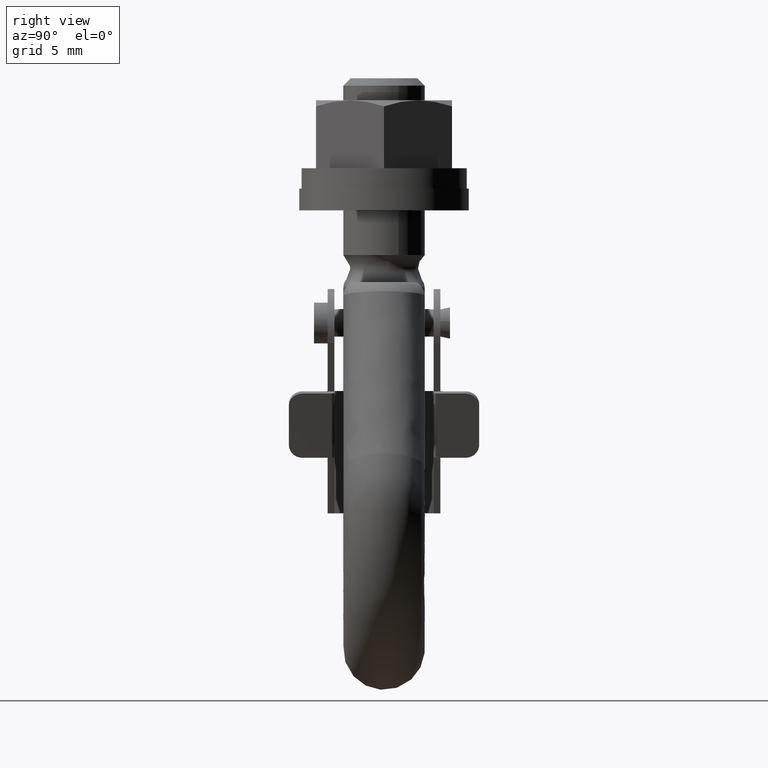
[diagram: clean part render]
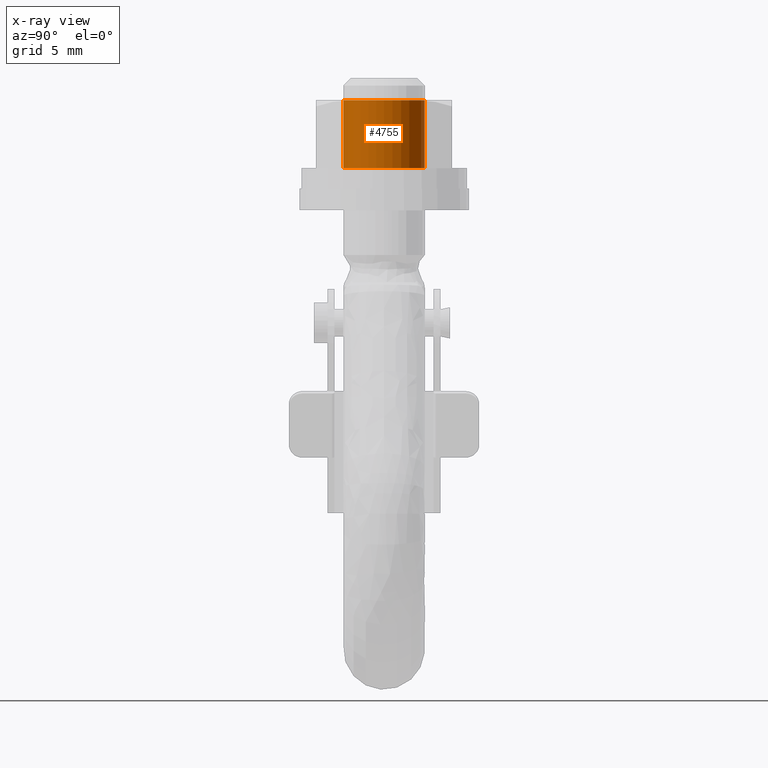
[diagram: x-ray — body ghosted, one internal face saturated and labeled with its STEP entity id]
A machine part, right view, then the same camera in x-ray: the body is ghosted and one INTERNAL B-rep face — a face not visible from any outside direction — is saturated and labeled: STEP entity #4755.
In plain terms, the highlighted face is a freeform B-spline surface patch.
Its self-contained STEP definition (entity closure, byte-faithful):
#4653=CARTESIAN_POINT('',(-0.354102703970275,-2.979028579091000,25.257636969437449));
#4654=CARTESIAN_POINT('',(-0.268844185913933,-2.989162846345817,25.257636969437449));
#4655=CARTESIAN_POINT('',(-0.183145618604571,-2.994404395265600,25.257636969437449));
#4656=CARTESIAN_POINT('',(2.811258776661029,-3.177550013870171,25.257636969437449));
#4657=CARTESIAN_POINT('',(2.994404395265600,-0.183145618604571,25.257636969437449));
#4658=CARTESIAN_POINT('',(3.177550013870171,2.811258776661029,25.257636969437449));
#4659=CARTESIAN_POINT('',(0.183145618604571,2.994404395265600,25.257636969437449));
#4660=CARTESIAN_POINT('',(-0.354102703970275,-2.979028579091000,30.510761969437457));
#4661=CARTESIAN_POINT('',(-0.268844185913933,-2.989162846345817,30.510761969437457));
#4662=CARTESIAN_POINT('',(-0.183145618604571,-2.994404395265600,30.510761969437450));
#4663=CARTESIAN_POINT('',(2.811258776661029,-3.177550013870171,30.510761969437457));
#4664=CARTESIAN_POINT('',(2.994404395265600,-0.183145618604571,30.510761969437450));
#4665=CARTESIAN_POINT('',(3.177550013870171,2.811258776661029,30.510761969437457));
#4666=CARTESIAN_POINT('',(0.183145618604571,2.994404395265600,30.510761969437450));
#4674=(BOUNDED_SURFACE()B_SPLINE_SURFACE(2,1,((#4653,#4660),(#4654,#4661),(#4655,#4662),(#4656,#4663),(#4657,#4664),(#4658,#4665),(#4659,#4666)),.UNSPECIFIED.,.F.,.F.,.U.)B_SPLINE_SURFACE_WITH_KNOTS((3,2,2,3),(2,2),(0.0,0.198822509939086,5.169385258416225,10.139948006893370),(0.0,5.253125000000011),.UNSPECIFIED.)GEOMETRIC_REPRESENTATION_ITEM()RATIONAL_B_SPLINE_SURFACE(((0.977505800795127,0.977505800795127),(0.988284271247462,0.988284271247462),(1.0,1.0),(0.707106781186548,0.707106781186548),(1.0,1.0),(0.707106781186548,0.707106781186548),(1.0,1.0)))REPRESENTATION_ITEM('')SURFACE());
#4675=CARTESIAN_POINT('',(-0.354102703990838,-2.979028579088555,25.382636969437449));
#4676=VERTEX_POINT('',#4675);
#4677=CARTESIAN_POINT('',(3.0,0.0,25.382636969437449));
#4678=VERTEX_POINT('',#4677);
#4679=CARTESIAN_POINT('',(-0.354102703990838,-2.979028579088555,25.382636969437446));
#4680=CARTESIAN_POINT('',(-0.177672358976511,-3.0,25.382636969437453));
#4681=CARTESIAN_POINT('',(0.0,-3.0,25.382636969437449));
#4682=CARTESIAN_POINT('',(3.0,-3.0,25.382636969437449));
#4683=CARTESIAN_POINT('',(3.0,0.0,25.382636969437449));
#4691=(BOUNDED_CURVE()B_SPLINE_CURVE(2,(#4679,#4680,#4681,#4682,#4683),.UNSPECIFIED.,.F.,.U.)B_SPLINE_CURVE_WITH_KNOTS((3,2,3),(0.229562473513311,0.250000000000000,0.500000000000000),.UNSPECIFIED.)CURVE()GEOMETRIC_REPRESENTATION_ITEM()RATIONAL_B_SPLINE_CURVE((0.956026754183313,0.976055948330914,1.0,0.707106781186548,1.0))REPRESENTATION_ITEM(''));
#4692=EDGE_CURVE('',#4676,#4678,#4691,.T.);
#4693=ORIENTED_EDGE('',*,*,#4692,.F.);
#4694=CARTESIAN_POINT('',(-0.354102703990838,-2.979028579088555,30.382636969437449));
#4695=VERTEX_POINT('',#4694);
#4696=CARTESIAN_POINT('',(-0.354102703990838,-2.979028579088555,25.382636969437449));
#4697=CARTESIAN_POINT('',(-0.354102703990838,-2.979028579088555,30.382636969437449));
#4698=QUASI_UNIFORM_CURVE('',1,(#4696,#4697),.UNSPECIFIED.,.F.,.U.);
#4699=EDGE_CURVE('',#4676,#4695,#4698,.T.);
#4700=ORIENTED_EDGE('',*,*,#4699,.T.);
#4701=CARTESIAN_POINT('',(3.0,0.0,30.382636969437449));
#4702=VERTEX_POINT('',#4701);
#4703=CARTESIAN_POINT('',(-0.354102703990838,-2.979028579088555,30.382636969437446));
#4704=CARTESIAN_POINT('',(-0.177672358976511,-3.000000000000000,30.382636969437446));
#4705=CARTESIAN_POINT('',(0.0,-3.0,30.382636969437449));
#4706=CARTESIAN_POINT('',(3.0,-3.0,30.382636969437456));
#4707=CARTESIAN_POINT('',(3.0,0.0,30.382636969437449));
#4715=(BOUNDED_CURVE()B_SPLINE_CURVE(2,(#4703,#4704,#4705,#4706,#4707),.UNSPECIFIED.,.F.,.U.)B_SPLINE_CURVE_WITH_KNOTS((3,2,3),(0.229562473513311,0.250000000000000,0.500000000000000),.UNSPECIFIED.)CURVE()GEOMETRIC_REPRESENTATION_ITEM()RATIONAL_B_SPLINE_CURVE((0.956026754183313,0.976055948330914,1.0,0.707106781186548,1.0))REPRESENTATION_ITEM(''));
#4716=EDGE_CURVE('',#4695,#4702,#4715,.T.);
#4717=ORIENTED_EDGE('',*,*,#4716,.T.);
#4718=CARTESIAN_POINT('',(0.183145618654667,2.994404395262536,30.382636969437449));
#4719=VERTEX_POINT('',#4718);
#4720=CARTESIAN_POINT('',(3.0,0.0,30.382636969437449));
#4721=CARTESIAN_POINT('',(3.000000000000000,2.822118200622465,30.382636969437446));
#4722=CARTESIAN_POINT('',(0.183145618654667,2.994404395262536,30.382636969437453));
#4730=(BOUNDED_CURVE()B_SPLINE_CURVE(2,(#4720,#4721,#4722),.UNSPECIFIED.,.F.,.U.)B_SPLINE_CURVE_WITH_KNOTS((3,3),(0.500000000000000,0.739332962236194),.UNSPECIFIED.)CURVE()GEOMETRIC_REPRESENTATION_ITEM()RATIONAL_B_SPLINE_CURVE((1.0,0.719603993289931,0.976072041660826))REPRESENTATION_ITEM(''));
#4731=EDGE_CURVE('',#4702,#4719,#4730,.T.);
#4732=ORIENTED_EDGE('',*,*,#4731,.T.);
#4733=CARTESIAN_POINT('',(0.183145618654667,2.994404395262536,25.382636969437449));
#4734=VERTEX_POINT('',#4733);
#4735=CARTESIAN_POINT('',(0.183145618654667,2.994404395262536,25.382636969437449));
#4736=CARTESIAN_POINT('',(0.183145618654667,2.994404395262536,30.382636969437449));
#4737=QUASI_UNIFORM_CURVE('',1,(#4735,#4736),.UNSPECIFIED.,.F.,.U.);
#4738=EDGE_CURVE('',#4734,#4719,#4737,.T.);
#4739=ORIENTED_EDGE('',*,*,#4738,.F.);
#4740=CARTESIAN_POINT('',(3.0,0.0,25.382636969437449));
#4741=CARTESIAN_POINT('',(3.000000000000000,2.822118200622465,25.382636969437456));
#4742=CARTESIAN_POINT('',(0.183145618654667,2.994404395262536,25.382636969437442));
#4750=(BOUNDED_CURVE()B_SPLINE_CURVE(2,(#4740,#4741,#4742),.UNSPECIFIED.,.F.,.U.)B_SPLINE_CURVE_WITH_KNOTS((3,3),(0.500000000000000,0.739332962236194),.UNSPECIFIED.)CURVE()GEOMETRIC_REPRESENTATION_ITEM()RATIONAL_B_SPLINE_CURVE((1.0,0.719603993289931,0.976072041660826))REPRESENTATION_ITEM(''));
#4751=EDGE_CURVE('',#4678,#4734,#4750,.T.);
#4752=ORIENTED_EDGE('',*,*,#4751,.F.);
#4753=EDGE_LOOP('',(#4693,#4700,#4717,#4732,#4739,#4752));
#4754=FACE_OUTER_BOUND('',#4753,.T.);
#4755=ADVANCED_FACE('',(#4754),#4674,.F.);